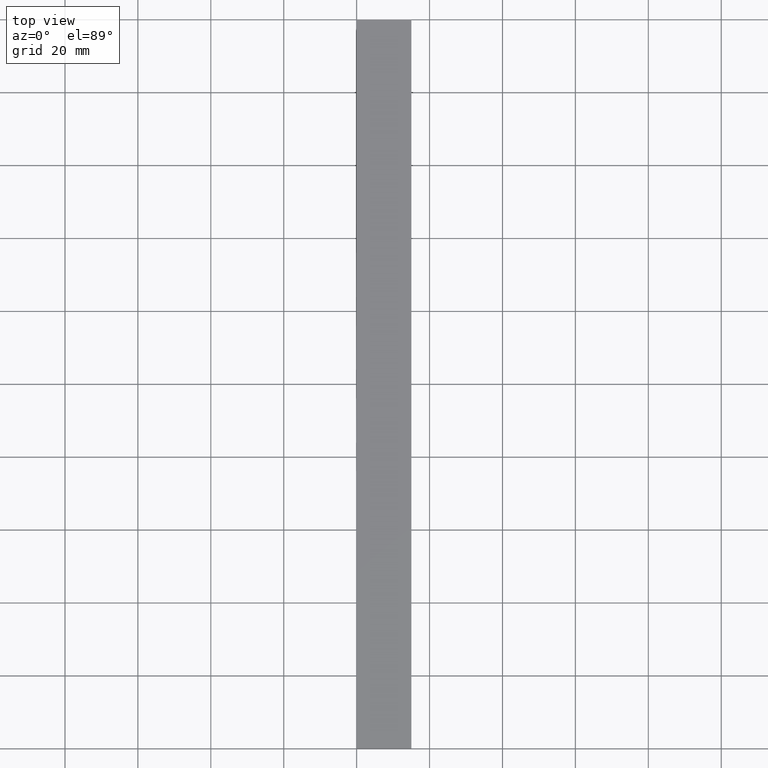
[diagram: clean part render]
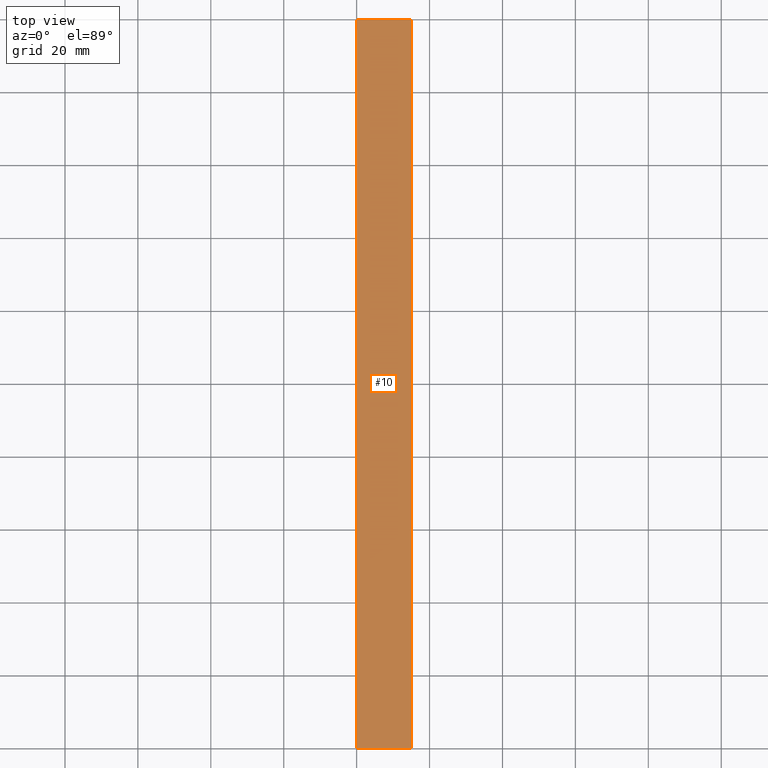
[diagram: same view with one face highlighted and labeled with its STEP entity id]
A machine part, top view. The second image highlights one B-rep face of the part: STEP entity #10.
In plain terms, the highlighted planar face has unit normal (0, 0, 1).
Its self-contained STEP definition (entity closure, byte-faithful):
#1 = LINE ( 'NONE', #203, #156 ) ;
#4 = FACE_OUTER_BOUND ( 'NONE', #188, .T. ) ;
#10 = ADVANCED_FACE ( 'NONE', ( #4 ), #175, .T. ) ;
#19 = VECTOR ( 'NONE', #215, 1000.000000000000000 ) ;
#21 = CARTESIAN_POINT ( 'NONE',  ( 15.00000000000000000, 1000.000000000000000, 5.000000000000000000 ) ) ;
#31 = VERTEX_POINT ( 'NONE', #126 ) ;
#35 = ORIENTED_EDGE ( 'NONE', *, *, #169, .F. ) ;
#41 = LINE ( 'NONE', #129, #233 ) ;
#42 = DIRECTION ( 'NONE',  ( 1.000000000000000000, 0.0000000000000000000, 0.0000000000000000000 ) ) ;
#61 = CARTESIAN_POINT ( 'NONE',  ( 15.00000000000000000, 200.0000000000000000, 5.000000000000000000 ) ) ;
#66 = DIRECTION ( 'NONE',  ( 0.0000000000000000000, -1.000000000000000000, 0.0000000000000000000 ) ) ;
#74 = EDGE_CURVE ( 'NONE', #190, #31, #117, .T. ) ;
#87 = ORIENTED_EDGE ( 'NONE', *, *, #74, .F. ) ;
#88 = EDGE_CURVE ( 'NONE', #190, #207, #1, .T. ) ;
#89 = ORIENTED_EDGE ( 'NONE', *, *, #88, .T. ) ;
#97 = LINE ( 'NONE', #168, #137 ) ;
#117 = LINE ( 'NONE', #21, #19 ) ;
#126 = CARTESIAN_POINT ( 'NONE',  ( 15.00000000000000000, 0.0000000000000000000, 5.000000000000000000 ) ) ;
#129 = CARTESIAN_POINT ( 'NONE',  ( 0.0000000000000000000, 0.0000000000000000000, 5.000000000000000000 ) ) ;
#137 = VECTOR ( 'NONE', #66, 1000.000000000000000 ) ;
#146 = CARTESIAN_POINT ( 'NONE',  ( 0.0000000000000000000, 200.0000000000000000, 5.000000000000000000 ) ) ;
#149 = DIRECTION ( 'NONE',  ( -1.000000000000000000, -0.0000000000000000000, -0.0000000000000000000 ) ) ;
#156 = VECTOR ( 'NONE', #165, 1000.000000000000000 ) ;
#159 = EDGE_CURVE ( 'NONE', #207, #204, #97, .T. ) ;
#165 = DIRECTION ( 'NONE',  ( -1.000000000000000000, -0.0000000000000000000, -0.0000000000000000000 ) ) ;
#168 = CARTESIAN_POINT ( 'NONE',  ( 0.0000000000000000000, 1000.000000000000000, 5.000000000000000000 ) ) ;
#169 = EDGE_CURVE ( 'NONE', #31, #204, #41, .T. ) ;
#175 = PLANE ( 'NONE',  #225 ) ;
#188 = EDGE_LOOP ( 'NONE', ( #35, #87, #89, #195 ) ) ;
#190 = VERTEX_POINT ( 'NONE', #61 ) ;
#194 = CARTESIAN_POINT ( 'NONE',  ( 15.00000000000000000, 1000.000000000000000, 5.000000000000000000 ) ) ;
#195 = ORIENTED_EDGE ( 'NONE', *, *, #159, .T. ) ;
#203 = CARTESIAN_POINT ( 'NONE',  ( 0.0000000000000000000, 200.0000000000000000, 5.000000000000000000 ) ) ;
#204 = VERTEX_POINT ( 'NONE', #214 ) ;
#207 = VERTEX_POINT ( 'NONE', #146 ) ;
#214 = CARTESIAN_POINT ( 'NONE',  ( 0.0000000000000000000, 0.0000000000000000000, 5.000000000000000000 ) ) ;
#215 = DIRECTION ( 'NONE',  ( 0.0000000000000000000, -1.000000000000000000, 0.0000000000000000000 ) ) ;
#225 = AXIS2_PLACEMENT_3D ( 'NONE', #194, #227, #42 ) ;
#227 = DIRECTION ( 'NONE',  ( 0.0000000000000000000, 0.0000000000000000000, 1.000000000000000000 ) ) ;
#233 = VECTOR ( 'NONE', #149, 1000.000000000000000 ) ;